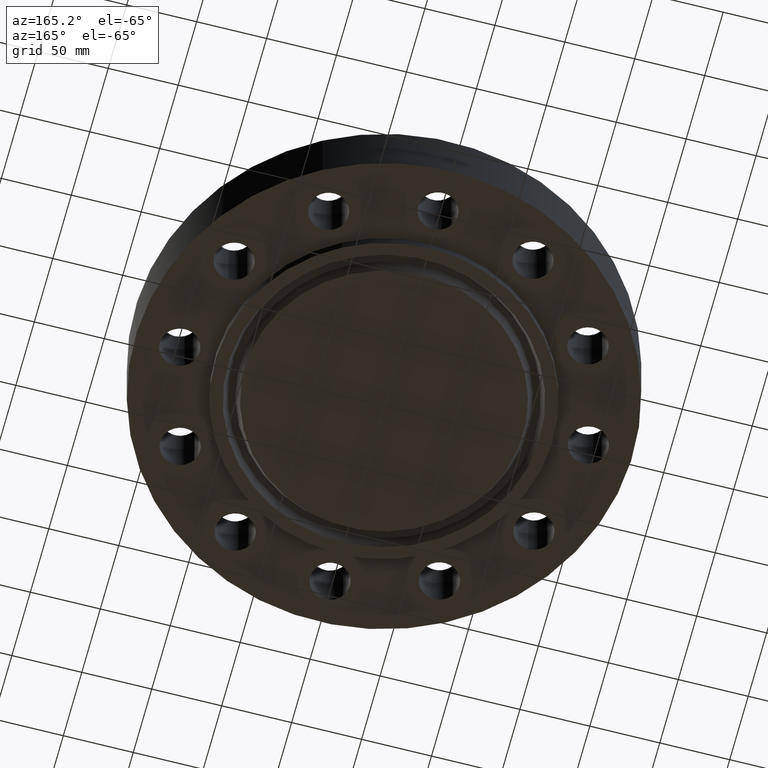
[diagram: clean part render]
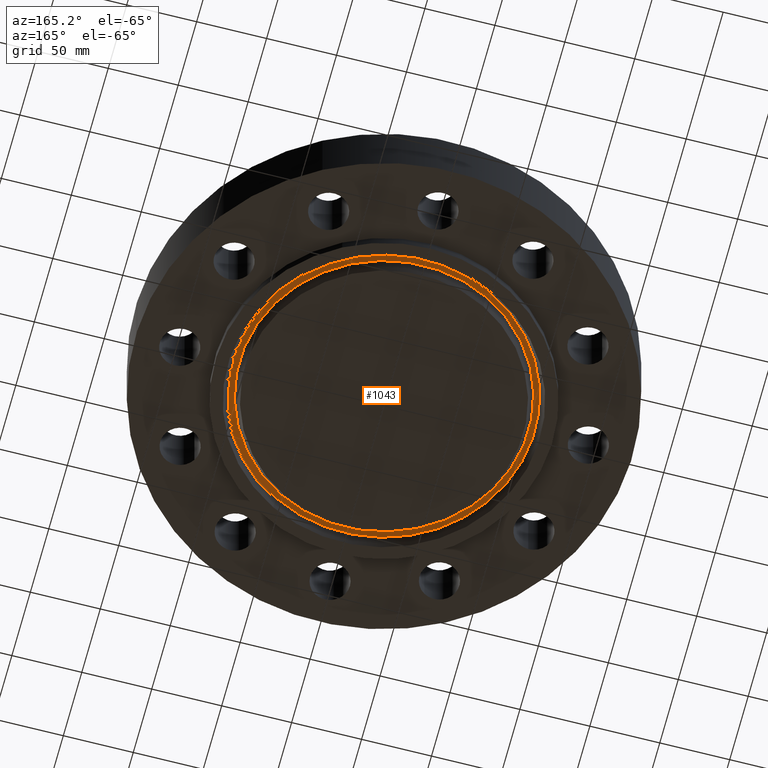
[diagram: same view with one face highlighted and labeled with its STEP entity id]
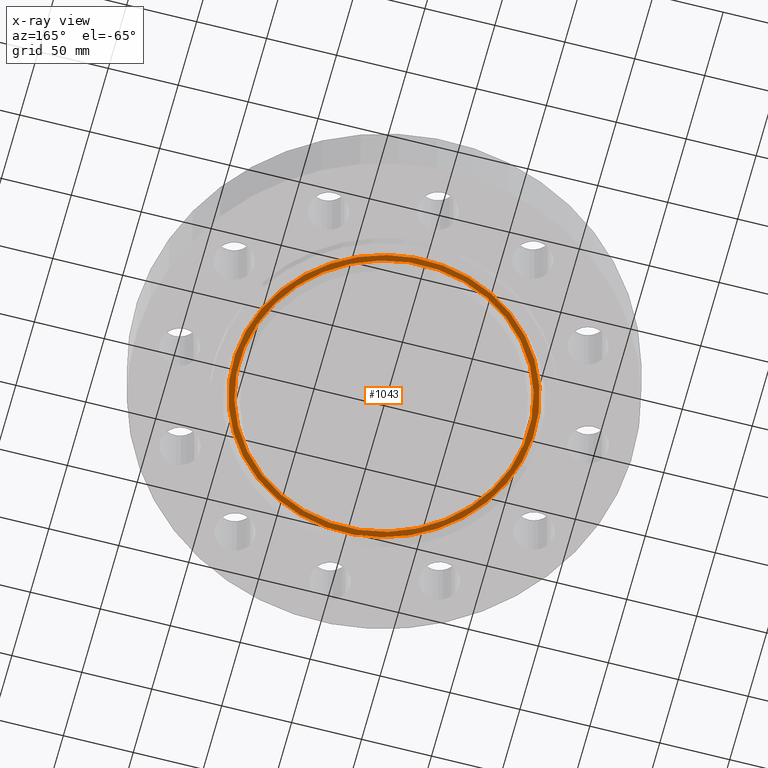
[diagram: x-ray of the same camera — body ghosted, the highlighted face saturated]
A machine part, auxiliary view. The second image highlights one B-rep face of the part: STEP entity #1043.
The next image is the same camera in x-ray: the body ghosted, the highlighted face saturated — about 0% of this face is hidden behind the body in this view.
In plain terms, the highlighted planar face has unit normal (0, 0, -1).
Its self-contained STEP definition (entity closure, byte-faithful):
#726=AXIS2_PLACEMENT_3D('Plane Axis2P3D',#723,#724,#725) ;
#965=AXIS2_PLACEMENT_3D('Circle Axis2P3D',#963,#964,$) ;
#1011=AXIS2_PLACEMENT_3D('Circle Axis2P3D',#1009,#1010,$) ;
#1027=AXIS2_PLACEMENT_3D('Circle Axis2P3D',#1025,#1026,$) ;
#1036=AXIS2_PLACEMENT_3D('Circle Axis2P3D',#1034,#1035,$) ;
#723=CARTESIAN_POINT('Axis2P3D Location',(0.,4.75000000002,0.)) ;
#960=CARTESIAN_POINT('Vertex',(-2.03146633308,3.71857417978,-6.11933950581E-017)) ;
#963=CARTESIAN_POINT('Axis2P3D Location',(0.,0.,-6.11933950581E-017)) ;
#967=CARTESIAN_POINT('Vertex',(2.03146633308,-3.71857417978,-6.11933950581E-017)) ;
#1009=CARTESIAN_POINT('Axis2P3D Location',(0.,0.,-6.11933950581E-017)) ;
#1025=CARTESIAN_POINT('Axis2P3D Location',(0.,0.,0.)) ;
#1029=CARTESIAN_POINT('Vertex',(1.95375845658,-3.57633086596,1.92322098754E-016)) ;
#1031=CARTESIAN_POINT('Vertex',(-1.95375845658,3.57633086596,1.92322098754E-016)) ;
#1034=CARTESIAN_POINT('Axis2P3D Location',(0.,0.,0.)) ;
#724=DIRECTION('Axis2P3D Direction',(0.,0.,-0.0393700787402)) ;
#725=DIRECTION('Axis2P3D XDirection',(0.0393700787402,0.,0.)) ;
#964=DIRECTION('Axis2P3D Direction',(0.,0.,0.0393700787402)) ;
#1010=DIRECTION('Axis2P3D Direction',(0.,0.,0.0393700787402)) ;
#1026=DIRECTION('Axis2P3D Direction',(0.,0.,-0.0393700787402)) ;
#1035=DIRECTION('Axis2P3D Direction',(0.,0.,-0.0393700787402)) ;
#1022=ORIENTED_EDGE('',*,*,#969,.F.) ;
#1023=ORIENTED_EDGE('',*,*,#1013,.F.) ;
#1040=ORIENTED_EDGE('',*,*,#1033,.T.) ;
#1041=ORIENTED_EDGE('',*,*,#1038,.T.) ;
#1042=FACE_BOUND('',#1039,.T.) ;
#1043=ADVANCED_FACE('PartBody',(#1024,#1042),#727,.T.) ;
#966=CIRCLE('generated circle',#965,4.23729269616) ;
#1012=CIRCLE('generated circle',#1011,4.23729269616) ;
#1028=CIRCLE('generated circle',#1027,4.07520730387) ;
#1037=CIRCLE('generated circle',#1036,4.07520730387) ;
#969=EDGE_CURVE('',#961,#968,#966,.T.) ;
#1013=EDGE_CURVE('',#968,#961,#1012,.T.) ;
#1033=EDGE_CURVE('',#1030,#1032,#1028,.F.) ;
#1038=EDGE_CURVE('',#1032,#1030,#1037,.F.) ;
#1021=EDGE_LOOP('',(#1022,#1023)) ;
#1039=EDGE_LOOP('',(#1040,#1041)) ;
#1024=FACE_OUTER_BOUND('',#1021,.T.) ;
#727=PLANE('',#726) ;
#961=VERTEX_POINT('',#960) ;
#968=VERTEX_POINT('',#967) ;
#1030=VERTEX_POINT('',#1029) ;
#1032=VERTEX_POINT('',#1031) ;